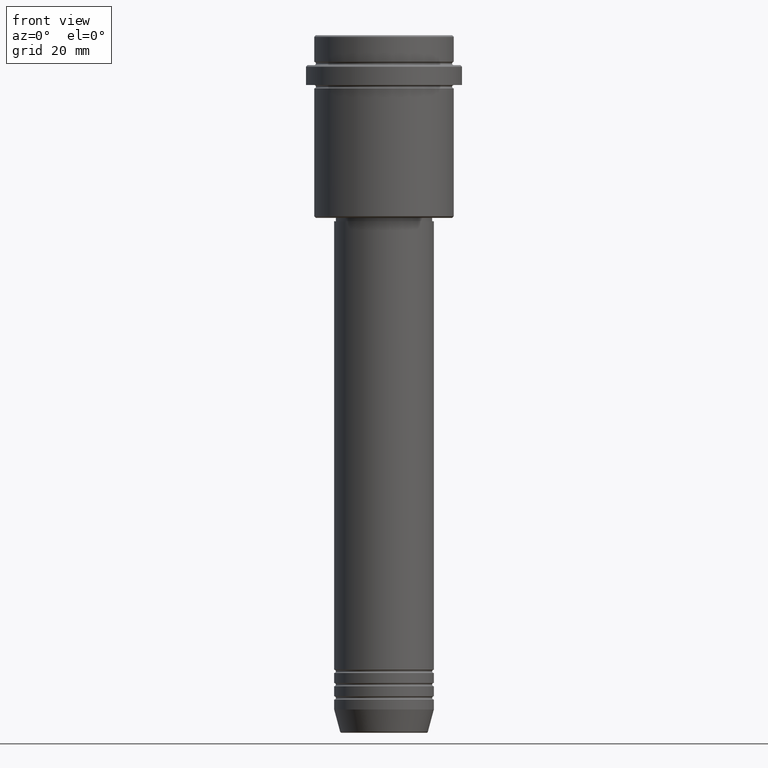
[diagram: clean part render]
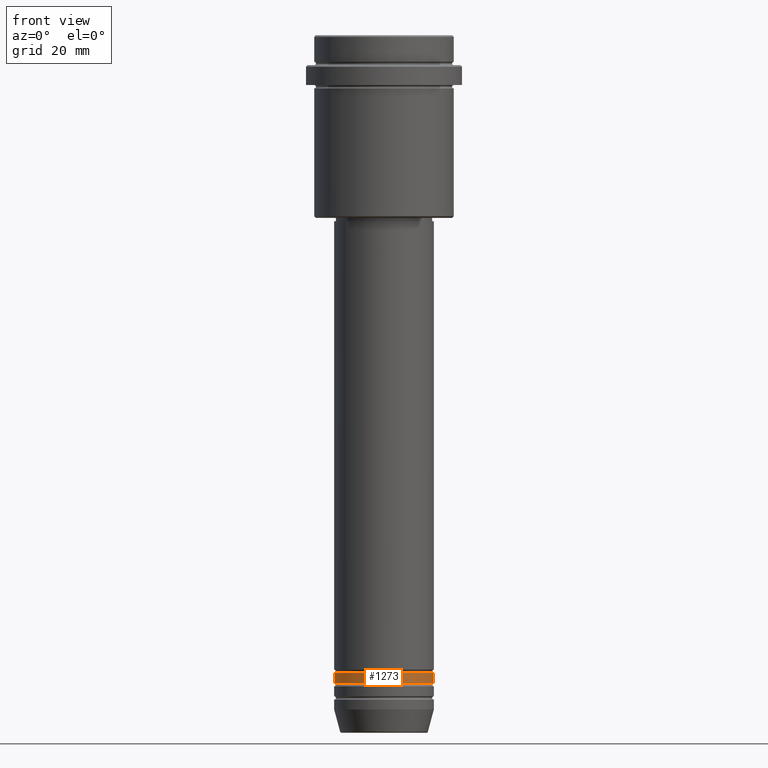
[diagram: same view with one face highlighted and labeled with its STEP entity id]
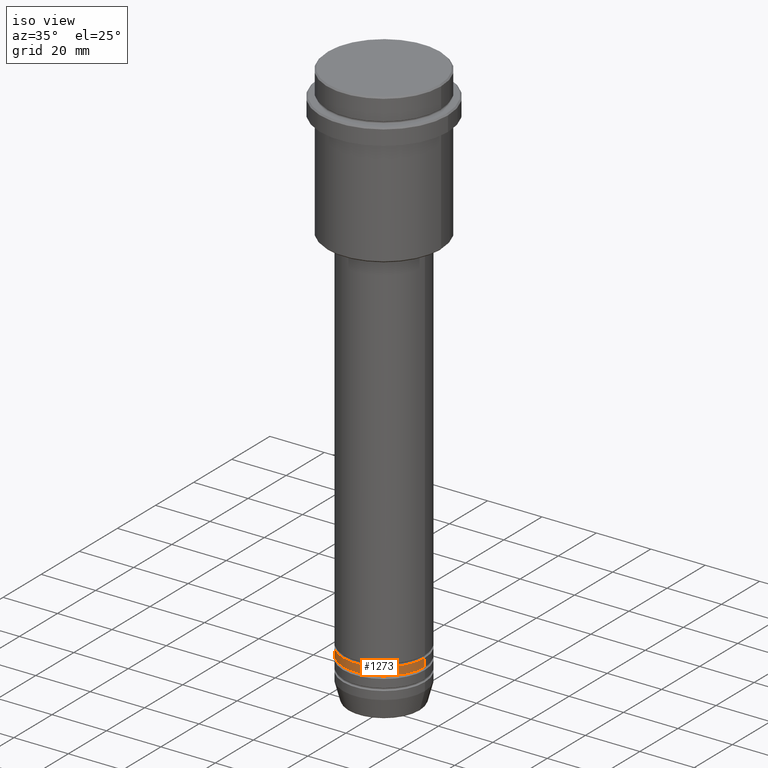
[diagram: same view with one face highlighted and labeled with its STEP entity id]
A machine part, front view. The second image highlights one B-rep face of the part: STEP entity #1273.
A second angle (iso view) of the same face is appended — the face is thin or edge-on in the first view.
In plain terms, the highlighted cylindrical surface (partial cylindrical patch) has radius 15 mm, axis along (-0, -0, 1).
Its self-contained STEP definition (entity closure, byte-faithful):
#33 = CARTESIAN_POINT ( 'NONE',  ( 15.00000000000000000, 0.000000000000000000, -194.9999999999999147 ) ) ;
#82 = VERTEX_POINT ( 'NONE', #1398 ) ;
#128 = CARTESIAN_POINT ( 'NONE',  ( 0.000000000000000000, 0.000000000000000000, 0.000000000000000000 ) ) ;
#177 = VERTEX_POINT ( 'NONE', #251 ) ;
#180 = VERTEX_POINT ( 'NONE', #33 ) ;
#181 = FACE_OUTER_BOUND ( 'NONE', #532, .T. ) ;
#251 = CARTESIAN_POINT ( 'NONE',  ( -15.00000000000000000, 1.836970198721029589E-15, -191.9999999999999147 ) ) ;
#288 = ORIENTED_EDGE ( 'NONE', *, *, #434, .T. ) ;
#329 = VECTOR ( 'NONE', #1049, 1000.000000000000000 ) ;
#337 = VERTEX_POINT ( 'NONE', #821 ) ;
#342 = EDGE_CURVE ( 'NONE', #180, #82, #1056, .T. ) ;
#377 = CARTESIAN_POINT ( 'NONE',  ( 15.00000000000000000, 0.000000000000000000, 0.000000000000000000 ) ) ;
#434 = EDGE_CURVE ( 'NONE', #337, #180, #832, .T. ) ;
#480 = EDGE_CURVE ( 'NONE', #177, #82, #990, .T. ) ;
#532 = EDGE_LOOP ( 'NONE', ( #554, #288, #700, #844 ) ) ;
#534 = DIRECTION ( 'NONE',  ( -0.000000000000000000, -0.000000000000000000, 1.000000000000000000 ) ) ;
#551 = CARTESIAN_POINT ( 'NONE',  ( 0.000000000000000000, 0.000000000000000000, -194.9999999999999147 ) ) ;
#554 = ORIENTED_EDGE ( 'NONE', *, *, #973, .F. ) ;
#636 = DIRECTION ( 'NONE',  ( -0.000000000000000000, -0.000000000000000000, 1.000000000000000000 ) ) ;
#700 = ORIENTED_EDGE ( 'NONE', *, *, #342, .T. ) ;
#821 = CARTESIAN_POINT ( 'NONE',  ( -15.00000000000000000, 1.836970198721029589E-15, -194.9999999999999147 ) ) ;
#832 = CIRCLE ( 'NONE', #1240, 15.00000000000000000 ) ;
#834 = AXIS2_PLACEMENT_3D ( 'NONE', #951, #636, #1069 ) ;
#844 = ORIENTED_EDGE ( 'NONE', *, *, #480, .F. ) ;
#858 = VECTOR ( 'NONE', #1416, 1000.000000000000000 ) ;
#880 = DIRECTION ( 'NONE',  ( 1.000000000000000000, 0.000000000000000000, 0.000000000000000000 ) ) ;
#951 = CARTESIAN_POINT ( 'NONE',  ( 0.000000000000000000, 0.000000000000000000, -191.9999999999999147 ) ) ;
#972 = DIRECTION ( 'NONE',  ( 1.000000000000000000, 0.000000000000000000, 0.000000000000000000 ) ) ;
#973 = EDGE_CURVE ( 'NONE', #337, #177, #1084, .T. ) ;
#975 = DIRECTION ( 'NONE',  ( -0.000000000000000000, -0.000000000000000000, 1.000000000000000000 ) ) ;
#977 = CARTESIAN_POINT ( 'NONE',  ( -15.00000000000000000, 1.836970198721029589E-15, 0.000000000000000000 ) ) ;
#990 = CIRCLE ( 'NONE', #834, 15.00000000000000000 ) ;
#1049 = DIRECTION ( 'NONE',  ( -0.000000000000000000, -0.000000000000000000, 1.000000000000000000 ) ) ;
#1056 = LINE ( 'NONE', #377, #329 ) ;
#1069 = DIRECTION ( 'NONE',  ( 1.000000000000000000, 0.000000000000000000, 0.000000000000000000 ) ) ;
#1084 = LINE ( 'NONE', #977, #858 ) ;
#1240 = AXIS2_PLACEMENT_3D ( 'NONE', #551, #534, #972 ) ;
#1273 = ADVANCED_FACE ( 'NONE', ( #181 ), #1292, .T. ) ;
#1292 = CYLINDRICAL_SURFACE ( 'NONE', #1362, 15.00000000000000000 ) ;
#1362 = AXIS2_PLACEMENT_3D ( 'NONE', #128, #975, #880 ) ;
#1398 = CARTESIAN_POINT ( 'NONE',  ( 15.00000000000000000, 0.000000000000000000, -191.9999999999999147 ) ) ;
#1416 = DIRECTION ( 'NONE',  ( -0.000000000000000000, -0.000000000000000000, 1.000000000000000000 ) ) ;